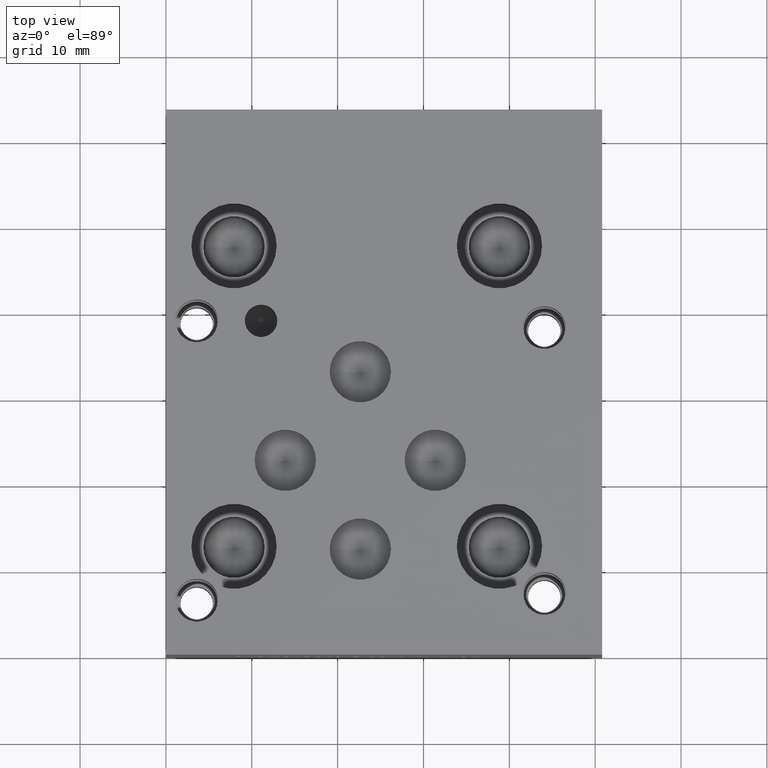
[diagram: clean part render]
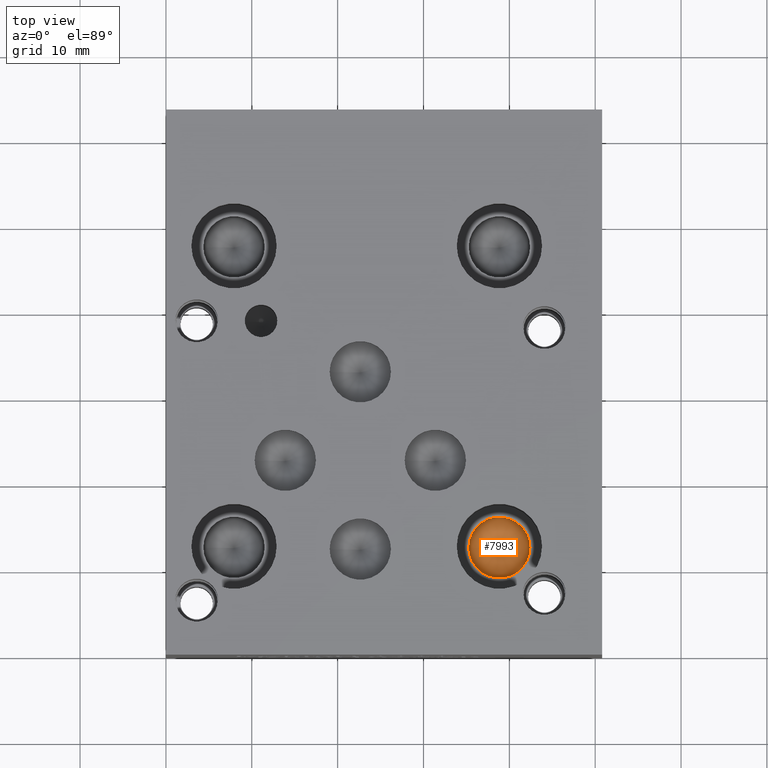
[diagram: same view with one face highlighted and labeled with its STEP entity id]
A machine part, top view. The second image highlights one B-rep face of the part: STEP entity #7993.
In plain terms, the highlighted conical surface has half-angle 60 deg.
Its self-contained STEP definition (entity closure, byte-faithful):
#26=CONICAL_SURFACE('',#8389,1.78435,1.0471975511966);
#103=CIRCLE('',#8390,3.5687);
#104=CIRCLE('',#8391,3.5687);
#912=FACE_OUTER_BOUND('',#1353,.T.);
#1353=EDGE_LOOP('',(#6809,#6810,#6811,#6812));
#2175=LINE('',#13399,#2960);
#2960=VECTOR('',#9930,1.78435);
#3676=VERTEX_POINT('',#13395);
#3677=VERTEX_POINT('',#13396);
#3678=VERTEX_POINT('',#13398);
#4748=EDGE_CURVE('',#3676,#3677,#103,.T.);
#4749=EDGE_CURVE('',#3677,#3678,#2175,.T.);
#4750=EDGE_CURVE('',#3677,#3676,#104,.T.);
#6809=ORIENTED_EDGE('',*,*,#4748,.T.);
#6810=ORIENTED_EDGE('',*,*,#4749,.T.);
#6811=ORIENTED_EDGE('',*,*,#4749,.F.);
#6812=ORIENTED_EDGE('',*,*,#4750,.T.);
#7993=ADVANCED_FACE('',(#912),#26,.F.);
#8389=AXIS2_PLACEMENT_3D('',#13394,#9926,#9927);
#8390=AXIS2_PLACEMENT_3D('',#13397,#9928,#9929);
#8391=AXIS2_PLACEMENT_3D('',#13400,#9931,#9932);
#9926=DIRECTION('center_axis',(0.,0.,1.));
#9927=DIRECTION('ref_axis',(1.,0.,0.));
#9928=DIRECTION('center_axis',(0.,0.,1.));
#9929=DIRECTION('ref_axis',(1.,0.,0.));
#9930=DIRECTION('',(0.866025403784439,1.06057523872491E-16,-0.5));
#9931=DIRECTION('center_axis',(0.,0.,1.));
#9932=DIRECTION('ref_axis',(1.,0.,0.));
#13394=CARTESIAN_POINT('Origin',(38.8366,12.6238,14.4354150471715));
#13395=CARTESIAN_POINT('',(42.4053,12.6238,15.46561));
#13396=CARTESIAN_POINT('',(35.2679,12.6238,15.46561));
#13397=CARTESIAN_POINT('Origin',(38.8366,12.6238,15.46561));
#13398=CARTESIAN_POINT('',(38.8366,12.6238,13.405220094343));
#13399=CARTESIAN_POINT('',(37.05225,12.6238,14.4354150471715));
#13400=CARTESIAN_POINT('Origin',(38.8366,12.6238,15.46561));